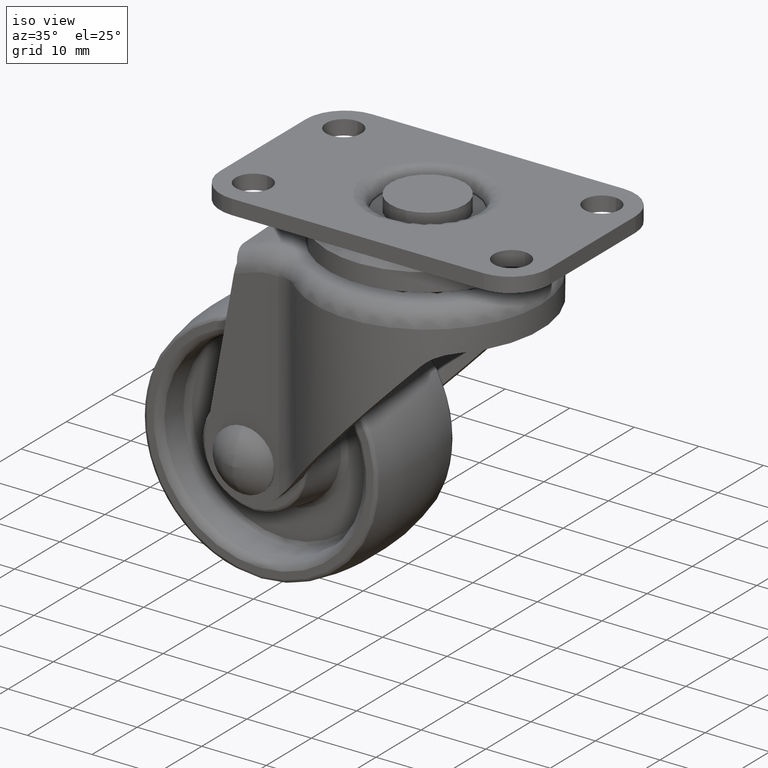
[diagram: clean part render]
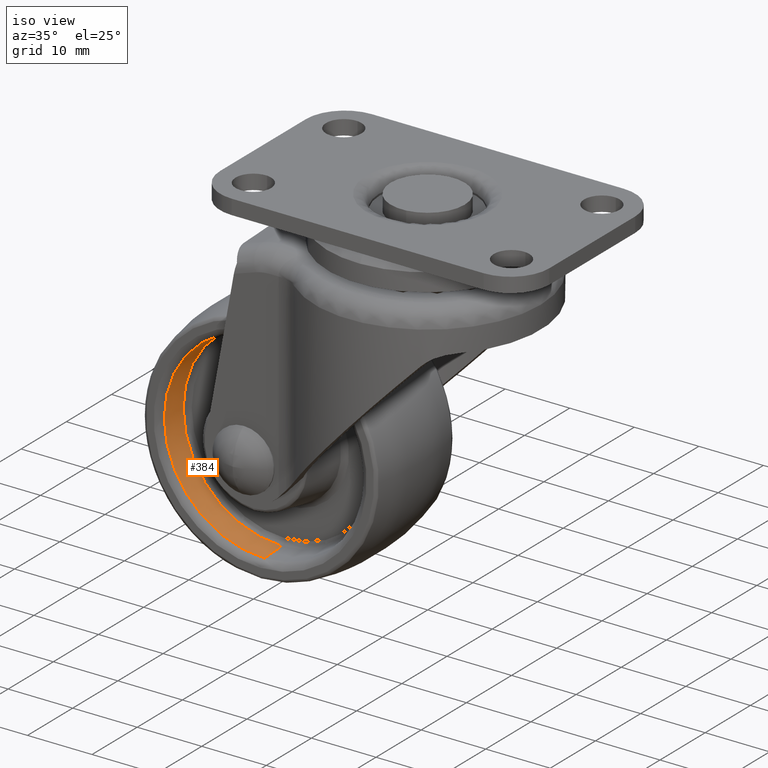
[diagram: same view with one face highlighted and labeled with its STEP entity id]
A machine part, iso view. The second image highlights one B-rep face of the part: STEP entity #384.
In plain terms, the highlighted face is a freeform B-spline surface patch.
Its self-contained STEP definition (entity closure, byte-faithful):
#384=ADVANCED_FACE('',(#2092),#2091,.F.);
#2091=( BOUNDED_SURFACE() B_SPLINE_SURFACE( 2,1,((#4599,#4600),(#4601,#4602),(#4603,#4604),(#4605,#4606),(#4607,#4608)), .UNSPECIFIED.,.F.,.F.,.F.) B_SPLINE_SURFACE_WITH_KNOTS((3,2,3),(2,2),(0.00000000000E+00,5.00000000000E-01,1.00000000000E+00),(0.00000000000E+00,1.00000000000E+00), .UNSPECIFIED. ) GEOMETRIC_REPRESENTATION_ITEM() RATIONAL_B_SPLINE_SURFACE(((1.00000000000E+00,1.00000000000E+00),(7.07106781187E-01,7.07106781187E-01),(1.00000000000E+00,1.00000000000E+00),(7.07106781187E-01,7.07106781187E-01),(1.00000000000E+00,1.00000000000E+00))) REPRESENTATION_ITEM('') SURFACE() );
#2092=FACE_OUTER_BOUND('',#4609,.T.);
#4599=CARTESIAN_POINT('',(-3.74965611232E+00,9.20993492241E-15,1.52615368804E+01));
#4600=CARTESIAN_POINT('',(-7.56292985960E+00,9.41922621564E-15,1.55019822362E+01));
#4601=CARTESIAN_POINT('',(-3.74965611232E+00,1.52615368804E+01,1.52615368804E+01));
#4602=CARTESIAN_POINT('',(-7.56292985960E+00,1.55019822362E+01,1.55019822362E+01));
#4603=CARTESIAN_POINT('',(-3.74965611232E+00,1.52615368804E+01,-7.40846630481E-15));
#4604=CARTESIAN_POINT('',(-7.56292985960E+00,1.55019822362E+01,-7.52518661486E-15));
#4605=CARTESIAN_POINT('',(-3.74965611232E+00,1.52615368804E+01,-1.52615368804E+01));
#4606=CARTESIAN_POINT('',(-7.56292985960E+00,1.55019822362E+01,-1.55019822362E+01));
#4607=CARTESIAN_POINT('',(-3.74965611232E+00,-5.60699768721E-15,-1.52615368804E+01));
#4608=CARTESIAN_POINT('',(-7.56292985960E+00,-5.63114701408E-15,-1.55019822362E+01));
#4609=EDGE_LOOP('',(#6133,#6134,#6135,#6136));
#6133=ORIENTED_EDGE('',*,*,#6715,.F.);
#6134=ORIENTED_EDGE('',*,*,#6716,.T.);
#6135=ORIENTED_EDGE('',*,*,#6717,.T.);
#6136=ORIENTED_EDGE('',*,*,#6718,.F.);
#6715=EDGE_CURVE('',#9805,#9806,#9807,.T.);
#6716=EDGE_CURVE('',#9805,#9813,#9814,.T.);
#6717=EDGE_CURVE('',#9813,#9820,#9821,.T.);
#6718=EDGE_CURVE('',#9806,#9820,#9827,.T.);
#9805=VERTEX_POINT('',#13818);
#9806=VERTEX_POINT('',#13819);
#9807=CIRCLE('',#13823,1.52615368804E+01);
#9813=VERTEX_POINT('',#13824);
#9814=(BOUNDED_CURVE() B_SPLINE_CURVE(1,(#13825,#13826),.UNSPECIFIED.,.F.,.F.) B_SPLINE_CURVE_WITH_KNOTS((2,2),(0.00000000000E+00,1.00000000000E+00),.UNSPECIFIED.) CURVE() GEOMETRIC_REPRESENTATION_ITEM() RATIONAL_B_SPLINE_CURVE((1.00000000000E+00,1.00000000000E+00)) REPRESENTATION_ITEM('') );
#9820=VERTEX_POINT('',#13827);
#9821=CIRCLE('',#13831,1.55019822362E+01);
#9827=(BOUNDED_CURVE() B_SPLINE_CURVE(1,(#13832,#13833),.UNSPECIFIED.,.F.,.F.) B_SPLINE_CURVE_WITH_KNOTS((2,2),(0.00000000000E+00,1.00000000000E+00),.UNSPECIFIED.) CURVE() GEOMETRIC_REPRESENTATION_ITEM() RATIONAL_B_SPLINE_CURVE((7.50000000000E-01,7.50000000000E-01)) REPRESENTATION_ITEM('') );
#13818=CARTESIAN_POINT('',(-3.74965611232E+00,-3.64529434268E-15,1.52615368804E+01));
#13819=CARTESIAN_POINT('',(-3.74965611232E+00,5.92118946467E-16,-1.52615368804E+01));
#13820=CARTESIAN_POINT('',(-3.74965611232E+00,0.00000000000E+00,0.00000000000E+00));
#13821=DIRECTION('',(-1.00000000000E+00,0.00000000000E+00,0.00000000000E+00));
#13822=DIRECTION('',(-0.00000000000E+00,-1.16394361415E-16,1.00000000000E+00));
#13823=AXIS2_PLACEMENT_3D('',#13820,#13821,#13822);
#13824=CARTESIAN_POINT('',(-7.56292985960E+00,-3.67473943373E-15,1.55019822362E+01));
#13825=CARTESIAN_POINT('',(-3.74965611232E+00,9.20993492241E-15,1.52615368804E+01));
#13826=CARTESIAN_POINT('',(-7.56292985960E+00,9.41922621564E-15,1.55019822362E+01));
#13827=CARTESIAN_POINT('',(-7.56292985960E+00,5.92118946467E-16,-1.55019822362E+01));
#13828=CARTESIAN_POINT('',(-7.56292985960E+00,0.00000000000E+00,0.00000000000E+00));
#13829=DIRECTION('',(-1.00000000000E+00,0.00000000000E+00,0.00000000000E+00));
#13830=DIRECTION('',(-0.00000000000E+00,-1.14589012704E-16,1.00000000000E+00));
#13831=AXIS2_PLACEMENT_3D('',#13828,#13829,#13830);
#13832=CARTESIAN_POINT('',(-3.74965611232E+00,-7.69754630407E-15,-1.52615368804E+01));
#13833=CARTESIAN_POINT('',(-7.56292985960E+00,-8.28966525053E-15,-1.55019822362E+01));